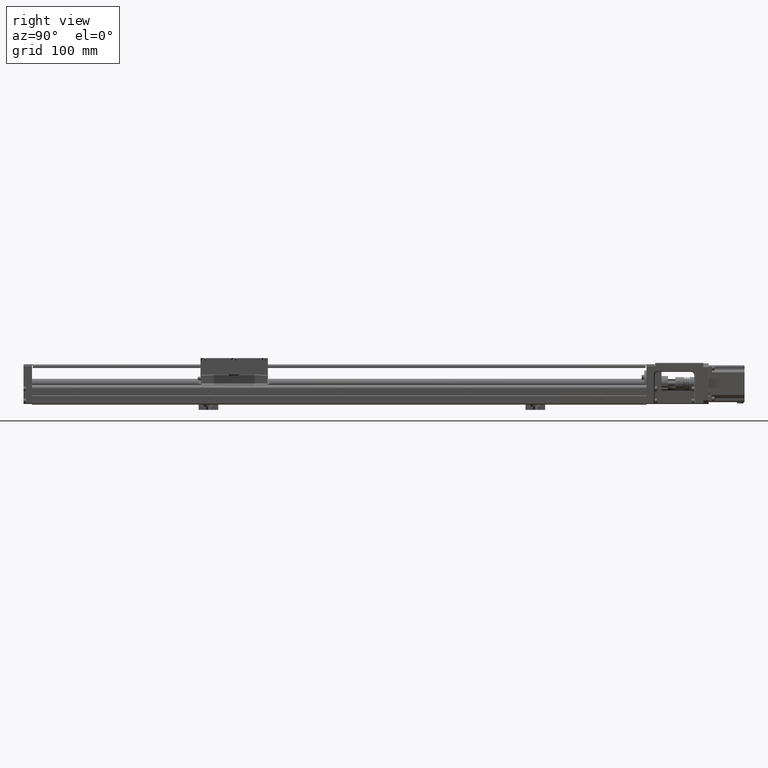
[diagram: clean part render]
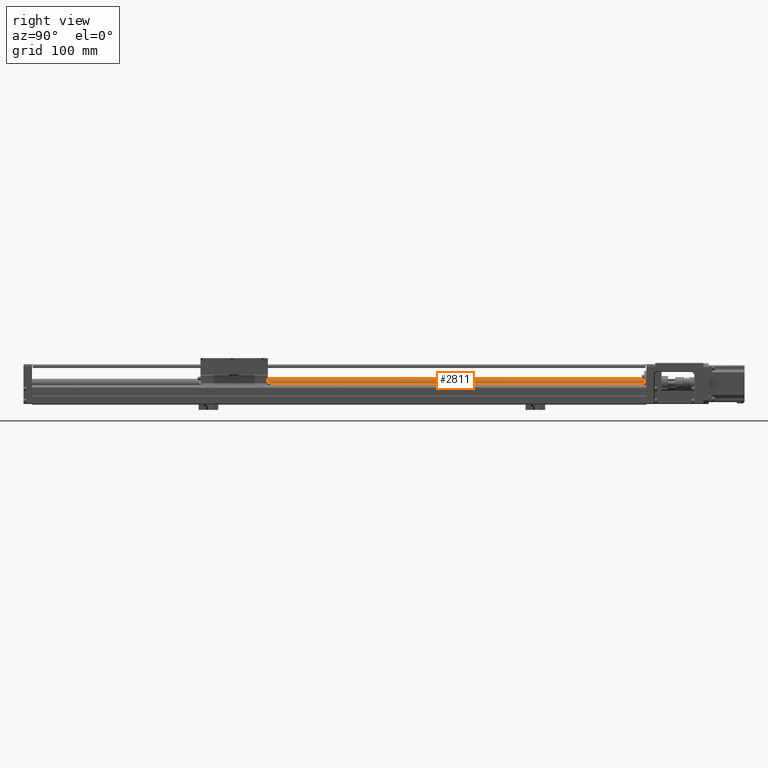
[diagram: same view with one face highlighted and labeled with its STEP entity id]
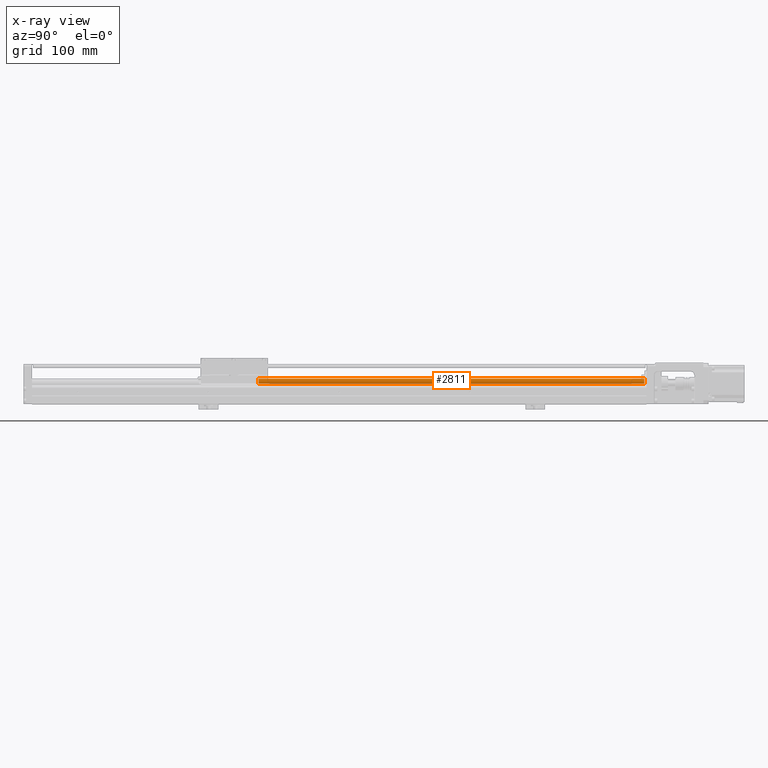
[diagram: x-ray of the same camera — body ghosted, the highlighted face saturated]
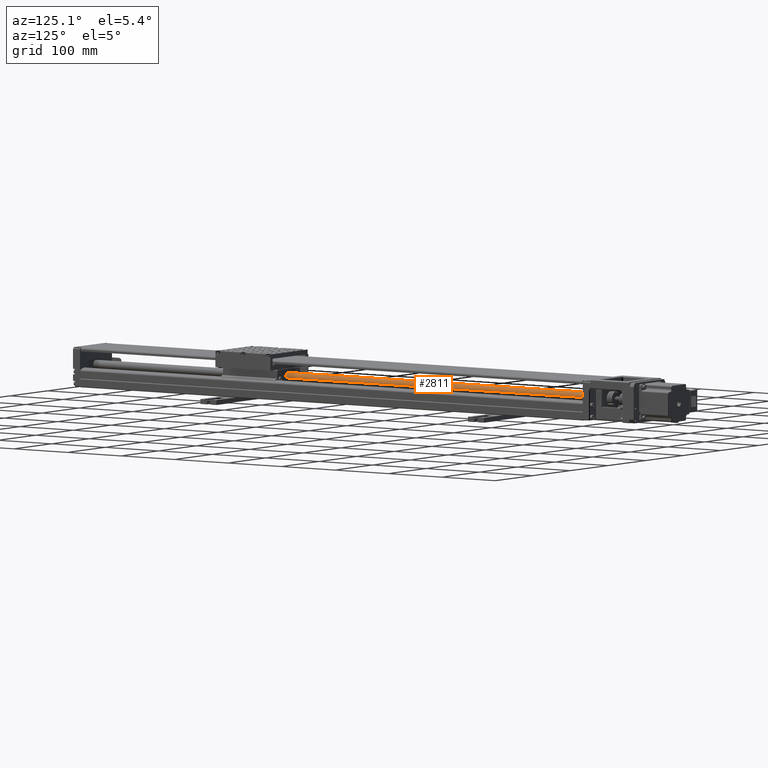
[diagram: same view with one face highlighted and labeled with its STEP entity id]
A machine part, right view. The second image highlights one B-rep face of the part: STEP entity #2811.
The next image is the same camera in x-ray: the body ghosted, the highlighted face saturated — about 0% of this face is hidden behind the body in this view.
A second angle (auxiliary view) of the same face is appended — the face is thin or edge-on in the first view.
In plain terms, the highlighted cylindrical surface (edge-blend (fillet) strip) has radius 7.5 mm, axis along (0, 1, -0).
Its self-contained STEP definition (entity closure, byte-faithful):
#2811=ADVANCED_FACE('',(#5378),#42206,.T.);
#5378=FACE_OUTER_BOUND('',#8297,.T.);
#8297=EDGE_LOOP('',(#21374,#21375,#21376,#21377));
#21374=ORIENTED_EDGE('',*,*,#28360,.T.);
#21375=ORIENTED_EDGE('',*,*,#25912,.T.);
#21376=ORIENTED_EDGE('',*,*,#25911,.T.);
#21377=ORIENTED_EDGE('',*,*,#28359,.F.);
#25911=EDGE_CURVE('',#38234,#39539,#33635,.T.);
#25912=EDGE_CURVE('',#38152,#38234,#33636,.T.);
#28359=EDGE_CURVE('',#39538,#39539,#35118,.T.);
#28360=EDGE_CURVE('',#39538,#38152,#35119,.T.);
#33635=(
BOUNDED_CURVE()
B_SPLINE_CURVE(2,(#100621,#100622,#100623,#100624,#100625),
 .UNSPECIFIED.,.F.,.F.)
B_SPLINE_CURVE_WITH_KNOTS((3,2,3),(-3.14159265358979,-1.5707963267949,0.),
 .UNSPECIFIED.)
CURVE()
GEOMETRIC_REPRESENTATION_ITEM()
RATIONAL_B_SPLINE_CURVE((1.,0.707106781186548,1.,0.707106781186548,1.))
REPRESENTATION_ITEM('')
);
#33636=(
BOUNDED_CURVE()
B_SPLINE_CURVE(1,(#100626,#100627),.UNSPECIFIED.,.F.,.F.)
B_SPLINE_CURVE_WITH_KNOTS((2,2),(-16.4276011358528,62.2),.UNSPECIFIED.)
CURVE()
GEOMETRIC_REPRESENTATION_ITEM()
RATIONAL_B_SPLINE_CURVE((1.,1.))
REPRESENTATION_ITEM('')
);
#35118=(
BOUNDED_CURVE()
B_SPLINE_CURVE(1,(#110995,#110996),.UNSPECIFIED.,.F.,.F.)
B_SPLINE_CURVE_WITH_KNOTS((2,2),(-16.4276011358528,62.2),.UNSPECIFIED.)
CURVE()
GEOMETRIC_REPRESENTATION_ITEM()
RATIONAL_B_SPLINE_CURVE((1.,1.))
REPRESENTATION_ITEM('')
);
#35119=(
BOUNDED_CURVE()
B_SPLINE_CURVE(2,(#110997,#110998,#110999,#111000,#111001),
 .UNSPECIFIED.,.F.,.F.)
B_SPLINE_CURVE_WITH_KNOTS((3,2,3),(0.,1.5707963267949,3.14159265358979),
 .UNSPECIFIED.)
CURVE()
GEOMETRIC_REPRESENTATION_ITEM()
RATIONAL_B_SPLINE_CURVE((1.,0.707106781186548,1.,0.707106781186548,1.))
REPRESENTATION_ITEM('')
);
#38152=VERTEX_POINT('',#71647);
#38234=VERTEX_POINT('',#71729);
#39538=VERTEX_POINT('',#73033);
#39539=VERTEX_POINT('',#73034);
#42206=CYLINDRICAL_SURFACE('',#44144,7.49999999999999);
#44144=AXIS2_PLACEMENT_3D('',#68352,#46065,$);
#46065=DIRECTION('',(0.,1.,-1.8947806286936E-15));
#68352=CARTESIAN_POINT('',(-7.105427357601E-15,103.141191569018,40.0000002768673));
#71647=CARTESIAN_POINT('',(-7.5,397.994695828466,40.0000002768673));
#71729=CARTESIAN_POINT('',(-7.5,-191.71231269043,40.0000002768673));
#73033=CARTESIAN_POINT('',(7.5,397.994695828466,40.0000002768673));
#73034=CARTESIAN_POINT('',(7.5,-191.71231269043,40.0000002768673));
#100621=CARTESIAN_POINT('',(-7.5,-191.71231269043,40.0000002768673));
#100622=CARTESIAN_POINT('',(-7.5,-191.71231269043,47.5000002768673));
#100623=CARTESIAN_POINT('',(0.,-191.71231269043,47.5000002768673));
#100624=CARTESIAN_POINT('',(7.5,-191.71231269043,47.5000002768673));
#100625=CARTESIAN_POINT('',(7.5,-191.71231269043,40.0000002768673));
#100626=CARTESIAN_POINT('',(-7.5,397.994695828466,40.0000002768673));
#100627=CARTESIAN_POINT('',(-7.5,-191.71231269043,40.0000002768673));
#110995=CARTESIAN_POINT('',(7.5,397.994695828466,40.0000002768673));
#110996=CARTESIAN_POINT('',(7.5,-191.71231269043,40.0000002768673));
#110997=CARTESIAN_POINT('',(7.5,397.994695828466,40.0000002768673));
#110998=CARTESIAN_POINT('',(7.5,397.994695828466,47.5000002768673));
#110999=CARTESIAN_POINT('',(0.,397.994695828466,47.5000002768673));
#111000=CARTESIAN_POINT('',(-7.5,397.994695828466,47.5000002768673));
#111001=CARTESIAN_POINT('',(-7.5,397.994695828466,40.0000002768673));